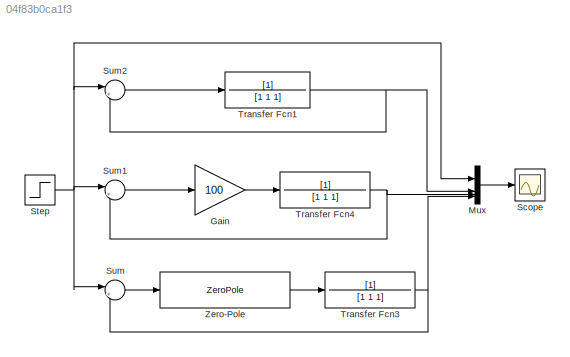
MODEL slx_04f83b0ca1f3
KIND model
CONFIG AbsTol = auto
CONFIG EnableMultiTasking = on
CONFIG FixedStep = auto
CONFIG MaxStep = 0.01
CONFIG MinStep = auto
CONFIG RelTol = 1e-3
CONFIG SampleTimeConstraint = Unconstrained
CONFIG SolverName = ode45
CONFIG StartTime = 0.0
CONFIG StopTime = 40.0
BLOCK [Gain] Gain
  Gain = 100
BLOCK [Mux] Mux
  DisplayOption = bar
BLOCK [Scope] Scope
  Floating = off
  NumInputPorts = 1
  ScopeSpecificationString = Simulink.scopes.TimeScopeBlockCfg('CurrentConfiguration', extmgr.ConfigurationSet(extmgr.Configuration('Core','General UI',true),extmgr.Configuration('Core','Source UI',true),extmgr.Configuration('Sources','WiredSimulink',true,'DataLoggingSaveFormat','StructureWithTime','DataLoggingLimitDataPoints',true,'DataLoggingDecimation','1','DataLoggingDecimateData',true),extmgr.Configuration('Visuals','Tim...<+1713ch>
BLOCK [Step] Step
  SampleTime = 0
BLOCK [Sum] Sum
  Inputs = |+-
BLOCK [Sum] Sum1
  Inputs = |+-
BLOCK [Sum] Sum2
  Inputs = |+-
BLOCK [TransferFcn] Transfer Fcn1
  Denominator = [1 1 1]
BLOCK [TransferFcn] Transfer Fcn3
  Denominator = [1 1 1]
BLOCK [TransferFcn] Transfer Fcn4
  Denominator = [1 1 1]
BLOCK [ZeroPole] Zero-Pole
  Gain = [211]
  Poles = [-21.08]
  Zeros = [-4.74]
LINE Gain:1 -> Transfer Fcn4:1
LINE Mux:1 -> Scope:1
NET Step:1 -> Mux:1, Sum1:1, Sum2:1, Sum:1
LINE Sum1:1 -> Gain:1
LINE Sum2:1 -> Transfer Fcn1:1
LINE Sum:1 -> Zero-Pole:1
NET Transfer Fcn1:1 -> Mux:2, Sum2:2
NET Transfer Fcn3:1 -> Mux:4, Sum:2
NET Transfer Fcn4:1 -> Mux:3, Sum1:2
LINE Zero-Pole:1 -> Transfer Fcn3:1
note: NET lines group one-source signal fan-out (src -> all destinations, sorted); 1:1 wires keep LINE
